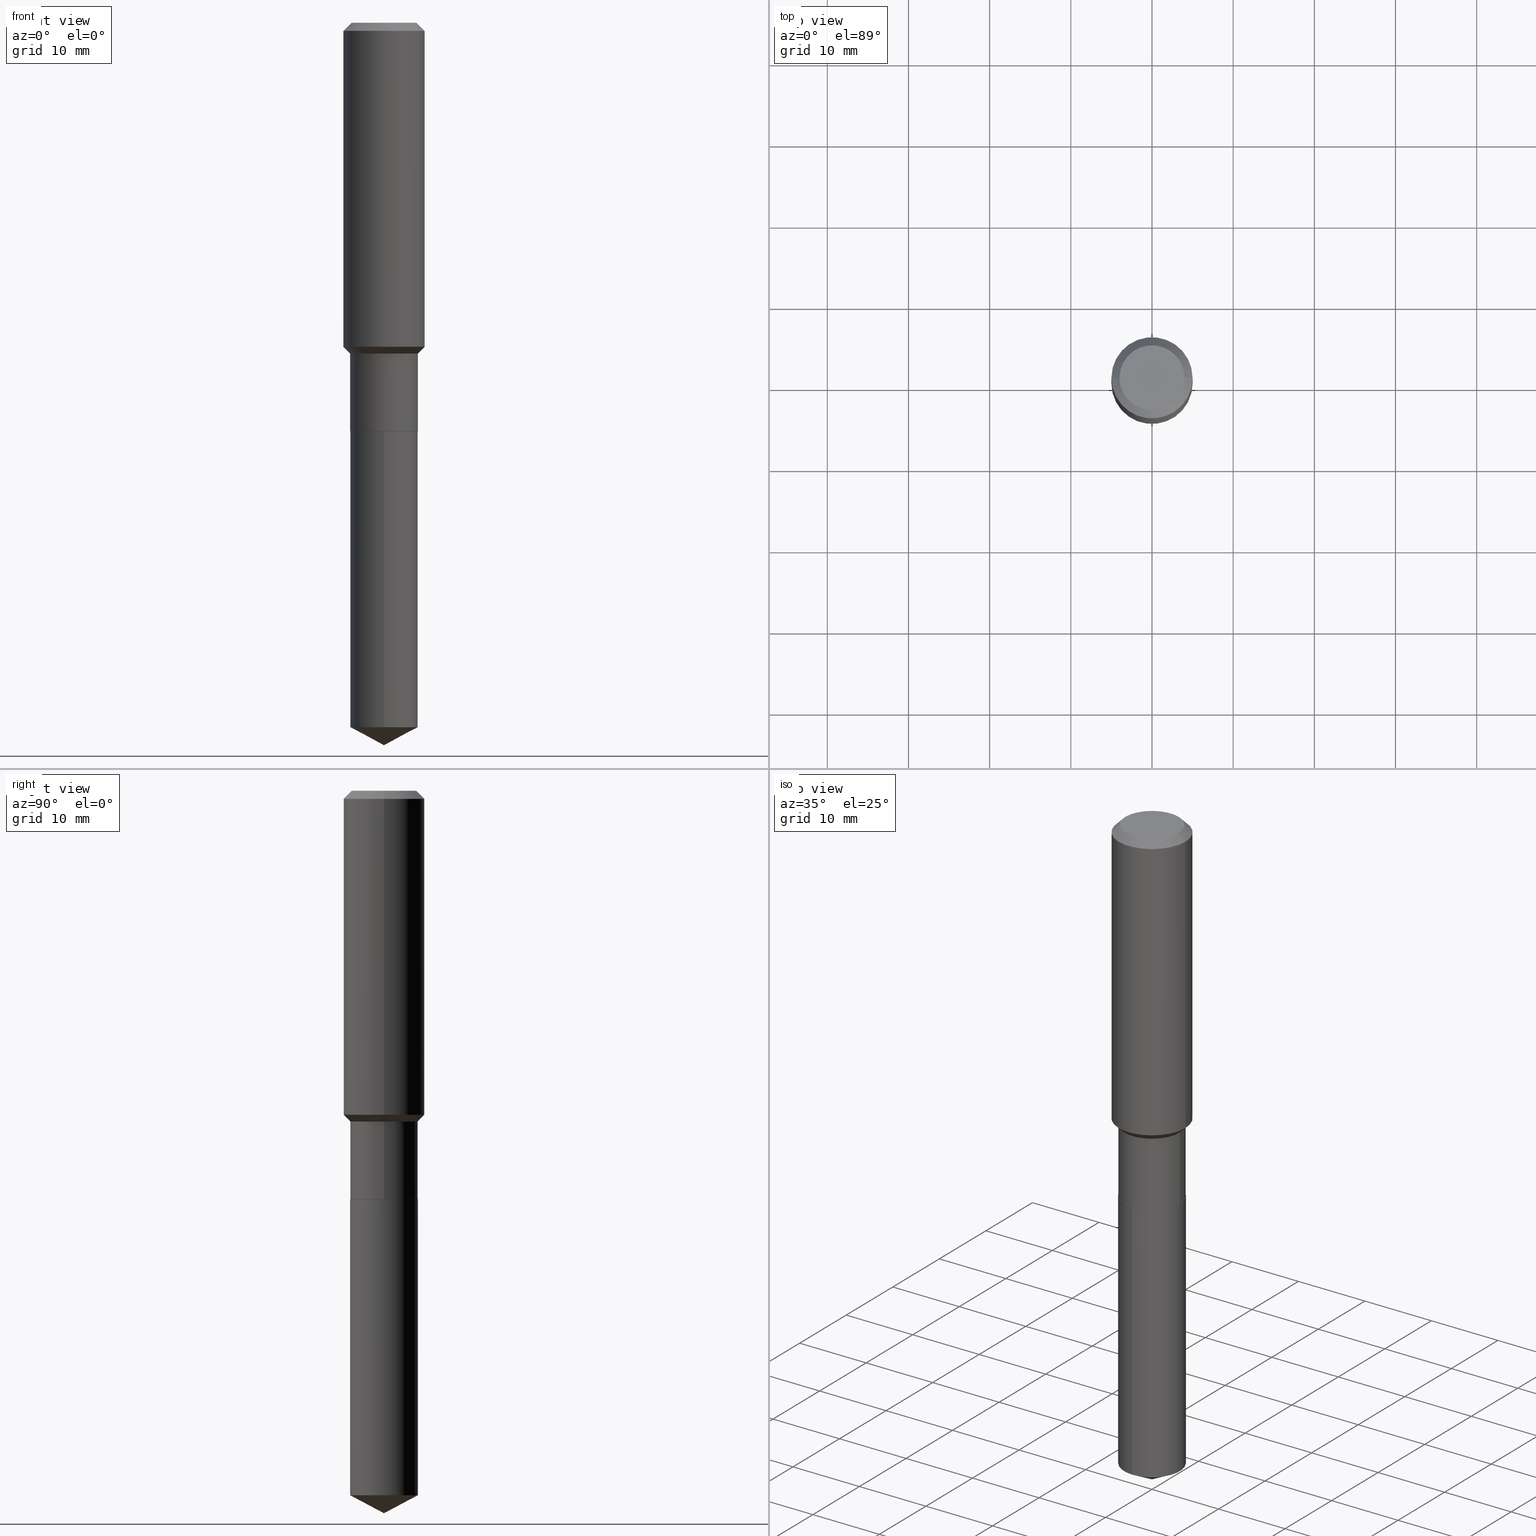
[diagram: canonical four-view strip — front | top / right | iso, engineering-drawing reading convention]
A machine part, canonical four-view strip (front | top / right | iso — engineering-drawing reading convention). The complete STEP part file that produces these views, byte-faithful:
ISO-10303-21;
HEADER;
FILE_DESCRIPTION (( 'STEP AP203' ),
    '1' );
FILE_NAME ('54716.STEP',
    '2024-04-24T15:30:50',
    ( '' ),
    ( '' ),
    'SwSTEP 2.0',
    'SolidWorks 2023',
    '' );
FILE_SCHEMA (( 'CONFIG_CONTROL_DESIGN' ));
ENDSEC;

DATA;
#1 = DIRECTION ( 'NONE',  ( -1.000000000000000000, 6.982962677686266711E-15, 0.000000000000000000 ) ) ;
#2 = ORIENTED_EDGE ( 'NONE', *, *, #274, .F. ) ;
#3 = DIRECTION ( 'NONE',  ( 0.7071067811866441621, -2.468850131083269169E-15, 0.7071067811864508723 ) ) ;
#4 = EDGE_LOOP ( 'NONE', ( #434, #384, #266, #228 ) ) ;
#5 = CARTESIAN_POINT ( 'NONE',  ( 4.845940986336466171E-29, -6.918719421051576678E-15, -1.981599999999999806 ) ) ;
#6 = DIRECTION ( 'NONE',  ( 0.7071067811865454633, -7.319954787623248157E-15, -0.7071067811865495711 ) ) ;
#7 = ORIENTED_EDGE ( 'NONE', *, *, #30, .T. ) ;
#8 = VECTOR ( 'NONE', #27, 39.37007874015748854 ) ;
#9 = APPROVAL_PERSON_ORGANIZATION ( #334, #154, #488 ) ;
#10 = ORIENTED_EDGE ( 'NONE', *, *, #449, .T. ) ;
#11 = PLANE ( 'NONE',  #288 ) ;
#12 = CARTESIAN_POINT ( 'NONE',  ( 4.845940986336466171E-29, -6.918719421051576678E-15, -1.981599999999999806 ) ) ;
#13 = EDGE_CURVE ( 'NONE', #245, #131, #324, .T. ) ;
#14 = ORIENTED_EDGE ( 'NONE', *, *, #222, .F. ) ;
#15 = CIRCLE ( 'NONE', #258, 0.1635500000000000009 ) ;
#16 = DIRECTION ( 'NONE',  ( -2.445468806185136597E-29, 3.491481338843145583E-15, 1.000000000000000000 ) ) ;
#17 = EDGE_LOOP ( 'NONE', ( #382, #316, #232, #348 ) ) ;
#18 =( LENGTH_UNIT ( ) NAMED_UNIT ( * ) SI_UNIT ( $, .METRE. ) );
#19 = ORIENTED_EDGE ( 'NONE', *, *, #312, .F. ) ;
#20 = APPLICATION_PROTOCOL_DEFINITION ( 'international standard', 'config_control_design', 1994, #477 ) ;
#21 = VERTEX_POINT ( 'NONE', #238 ) ;
#22 = AXIS2_PLACEMENT_3D ( 'NONE', #375, #369, #489 ) ;
#23 = AXIS2_PLACEMENT_3D ( 'NONE', #171, #394, #199 ) ;
#24 = DATE_AND_TIME ( #32, #166 ) ;
#25 = CARTESIAN_POINT ( 'NONE',  ( 0.000000000000000000, 0.000000000000000000, 0.000000000000000000 ) ) ;
#26 = DATE_AND_TIME ( #286, #264 ) ;
#27 = DIRECTION ( 'NONE',  ( -6.165590087286827352E-15, -0.8829475928589254341, 0.4694715627858938034 ) ) ;
#28 = PERSON_AND_ORGANIZATION ( #456, #204 ) ;
#29 = DIRECTION ( 'NONE',  ( -6.982962677686267499E-15, -1.000000000000000000, 3.541896320645578618E-15 ) ) ;
#30 = EDGE_CURVE ( 'NONE', #474, #352, #126, .T. ) ;
#31 = EDGE_CURVE ( 'NONE', #474, #121, #424, .T. ) ;
#32 = CALENDAR_DATE ( 2024, 24, 4 ) ;
#33 = VECTOR ( 'NONE', #265, 39.37007874015748143 ) ;
#34 = DIRECTION ( 'NONE',  ( 1.000000000000000000, -6.982962677686266711E-15, 4.876176775795935793E-29 ) ) ;
#35 = CARTESIAN_POINT ( 'NONE',  ( 3.923265605762814630E-29, -5.601383511906058021E-15, -1.604299999999999837 ) ) ;
#36 = DIRECTION ( 'NONE',  ( -2.445522446065452572E-29, 3.491404523481540446E-15, 1.000000000000000000 ) ) ;
#37 = CARTESIAN_POINT ( 'NONE',  ( -0.1968500000000000527, 1.237136582792286422E-15, -0.03937000000000027283 ) ) ;
#38 = CC_DESIGN_PERSON_AND_ORGANIZATION_ASSIGNMENT ( #28, #106, ( #157 ) ) ;
#39 = AXIS2_PLACEMENT_3D ( 'NONE', #279, #60, #272 ) ;
#40 = DIRECTION ( 'NONE',  ( -2.445522446065452572E-29, 3.491404523481540446E-15, 1.000000000000000000 ) ) ;
#41 = ORIENTED_EDGE ( 'NONE', *, *, #274, .T. ) ;
#42 = CARTESIAN_POINT ( 'NONE',  ( -8.771165145643749478E-28, 1.252231864760627282E-13, 35.86617874015747987 ) ) ;
#43 = EDGE_LOOP ( 'NONE', ( #161, #429, #236, #56 ) ) ;
#44 = ADVANCED_FACE ( 'NONE', ( #353 ), #11, .F. ) ;
#45 = DIRECTION ( 'NONE',  ( -0.7071067811865454633, 2.468850131082235367E-15, -0.7071067811865495711 ) ) ;
#46 = VECTOR ( 'NONE', #193, 39.37007874015748143 ) ;
#47 = ORIENTED_EDGE ( 'NONE', *, *, #413, .F. ) ;
#48 = CIRCLE ( 'NONE', #120, 0.1640500000000000014 ) ;
#49 = FACE_OUTER_BOUND ( 'NONE', #416, .T. ) ;
#50 = ORIENTED_EDGE ( 'NONE', *, *, #218, .T. ) ;
#51 = APPROVAL ( #481, 'UNSPECIFIED' ) ;
#52 = FACE_OUTER_BOUND ( 'NONE', #77, .T. ) ;
#53 = ADVANCED_FACE ( 'NONE', ( #335 ), #406, .T. ) ;
#54 = ORIENTED_EDGE ( 'NONE', *, *, #70, .F. ) ;
#55 = DIRECTION ( 'NONE',  ( 1.000000000000000000, -6.982962677686266711E-15, 0.000000000000000000 ) ) ;
#56 = ORIENTED_EDGE ( 'NONE', *, *, #205, .F. ) ;
#57 = LOCAL_TIME ( 11, 30, 50.00000000000000000, #483 ) ;
#58 = DIRECTION ( 'NONE',  ( -2.445468806185136597E-29, 3.491481338843145583E-15, 1.000000000000000000 ) ) ;
#59 = ORIENTED_EDGE ( 'NONE', *, *, #256, .F. ) ;
#60 = DIRECTION ( 'NONE',  ( -2.445468806185136597E-29, 3.491481338843145583E-15, 1.000000000000000000 ) ) ;
#61 = ORIENTED_EDGE ( 'NONE', *, *, #368, .T. ) ;
#62 =( NAMED_UNIT ( * ) SI_UNIT ( $, .STERADIAN. ) SOLID_ANGLE_UNIT ( ) );
#63 = DIRECTION ( 'NONE',  ( -0.7071067811865472397, 7.493145998870354160E-15, 0.7071067811865477948 ) ) ;
#64 = APPROVAL_PERSON_ORGANIZATION ( #327, #51, #137 ) ;
#65 = APPROVAL_DATE_TIME ( #447, #154 ) ;
#66 = DIRECTION ( 'NONE',  ( 1.000000000000000000, -6.982962677686266711E-15, 0.000000000000000000 ) ) ;
#67 = DESIGN_CONTEXT ( 'detailed design', #440, 'design' ) ;
#68 = PERSON_AND_ORGANIZATION ( #456, #204 ) ;
#69 = DIRECTION ( 'NONE',  ( -2.445468806185136597E-29, 3.491481338843145583E-15, 1.000000000000000000 ) ) ;
#70 = EDGE_CURVE ( 'NONE', #469, #466, #399, .T. ) ;
#71 = FACE_OUTER_BOUND ( 'NONE', #230, .T. ) ;
#72 = AXIS2_PLACEMENT_3D ( 'NONE', #78, #379, #188 ) ;
#73 = PERSON_AND_ORGANIZATION ( #456, #204 ) ;
#74 = AXIS2_PLACEMENT_3D ( 'NONE', #111, #339, #1 ) ;
#75 = DIRECTION ( 'NONE',  ( 2.445522446065452572E-29, -3.491404523481540446E-15, -1.000000000000000000 ) ) ;
#76 = DIRECTION ( 'NONE',  ( -2.445522446065452572E-29, 3.491404523481540446E-15, 1.000000000000000000 ) ) ;
#77 = EDGE_LOOP ( 'NONE', ( #7, #427, #19, #96 ) ) ;
#78 = CARTESIAN_POINT ( 'NONE',  ( -9.427742298522567634E-47, 1.346031739168368355E-32, 3.855188123715870730E-18 ) ) ;
#79 = VERTEX_POINT ( 'NONE', #287 ) ;
#80 = AXIS2_PLACEMENT_3D ( 'NONE', #180, #143, #29 ) ;
#81 = DIRECTION ( 'NONE',  ( 1.000000000000000000, -6.982962677686266711E-15, 0.000000000000000000 ) ) ;
#82 = AXIS2_PLACEMENT_3D ( 'NONE', #306, #152, #147 ) ;
#83 = EDGE_CURVE ( 'NONE', #469, #362, #331, .T. ) ;
#84 = CARTESIAN_POINT ( 'NONE',  ( 4.845940986336466171E-29, -6.918719421051576678E-15, -1.981599999999999806 ) ) ;
#85 = EDGE_CURVE ( 'NONE', #129, #474, #105, .T. ) ;
#86 = DIRECTION ( 'NONE',  ( -6.982962677686265133E-15, -1.000000000000000000, 3.330506545156066257E-15 ) ) ;
#87 = ORIENTED_EDGE ( 'NONE', *, *, #470, .T. ) ;
#88 = CC_DESIGN_DATE_AND_TIME_ASSIGNMENT ( #26, #179, ( #139 ) ) ;
#89 = LENGTH_MEASURE_WITH_UNIT ( LENGTH_MEASURE( 0.02539999999999999897 ), #18 );
#90 = AXIS2_PLACEMENT_3D ( 'NONE', #187, #69, #486 ) ;
#91 = DIRECTION ( 'NONE',  ( -2.445522446065452853E-29, 3.491404523481540446E-15, 1.000000000000000000 ) ) ;
#92 = AXIS2_PLACEMENT_3D ( 'NONE', #465, #277, #431 ) ;
#93 = CC_DESIGN_PERSON_AND_ORGANIZATION_ASSIGNMENT ( #175, #371, ( #374 ) ) ;
#94 = ORIENTED_EDGE ( 'NONE', *, *, #346, .F. ) ;
#95 = EDGE_LOOP ( 'NONE', ( #14, #61, #50, #2 ) ) ;
#96 = ORIENTED_EDGE ( 'NONE', *, *, #31, .F. ) ;
#97 = DIRECTION ( 'NONE',  ( -2.445468806185136877E-29, 3.491481338843145188E-15, 1.000000000000000000 ) ) ;
#98 = PERSON_AND_ORGANIZATION ( #456, #204 ) ;
#99 = DIRECTION ( 'NONE',  ( -2.445468806185136597E-29, 3.491481338843145583E-15, 1.000000000000000000 ) ) ;
#100 = DIRECTION ( 'NONE',  ( -2.445468806185136597E-29, 3.491481338843145583E-15, 1.000000000000000000 ) ) ;
#101 = AXIS2_PLACEMENT_3D ( 'NONE', #140, #446, #176 ) ;
#102 = ADVANCED_FACE ( 'NONE', ( #71 ), #250, .F. ) ;
#103 = ADVANCED_FACE ( 'NONE', ( #328 ), #402, .F. ) ;
#104 = PERSON_AND_ORGANIZATION ( #456, #204 ) ;
#105 = LINE ( 'NONE', #214, #8 ) ;
#106 = PERSON_AND_ORGANIZATION_ROLE ( 'design_supplier' ) ;
#107 = CARTESIAN_POINT ( 'NONE',  ( 4.845940986336466171E-29, -6.918719421051576678E-15, -1.981599999999999806 ) ) ;
#108 = SECURITY_CLASSIFICATION_LEVEL ( 'unclassified' ) ;
#109 = CARTESIAN_POINT ( 'NONE',  ( 3.923265605762814630E-29, -5.601383511906058021E-15, -1.604299999999999837 ) ) ;
#110 = CIRCLE ( 'NONE', #128, 0.1968500000000001915 ) ;
#111 = CARTESIAN_POINT ( 'NONE',  ( 9.627810689950950651E-31, -1.374596203102555808E-16, -0.03937000000000027283 ) ) ;
#112 = CC_DESIGN_DATE_AND_TIME_ASSIGNMENT ( #283, #438, ( #476 ) ) ;
#113 = LINE ( 'NONE', #410, #349 ) ;
#114 = DIRECTION ( 'NONE',  ( -2.445468806185136597E-29, 3.491481338843145583E-15, 1.000000000000000000 ) ) ;
#115 = ORIENTED_EDGE ( 'NONE', *, *, #432, .F. ) ;
#116 = ADVANCED_FACE ( 'NONE', ( #441 ), #475, .T. ) ;
#117 = ADVANCED_FACE ( 'NONE', ( #293 ), #217, .T. ) ;
#118 = AXIS2_PLACEMENT_3D ( 'NONE', #107, #404, #211 ) ;
#119 = CARTESIAN_POINT ( 'NONE',  ( 0.1968500000000001915, -6.861459127094544262E-15, -1.571499999999999675 ) ) ;
#120 = AXIS2_PLACEMENT_3D ( 'NONE', #190, #40, #344 ) ;
#121 = VERTEX_POINT ( 'NONE', #396 ) ;
#122 = DIRECTION ( 'NONE',  ( 0.7071067811865472397, -2.468850131082253905E-15, 0.7071067811865477948 ) ) ;
#123 = ORIENTED_EDGE ( 'NONE', *, *, #13, .F. ) ;
#124 = CARTESIAN_POINT ( 'NONE',  ( 9.627810689950950651E-31, -1.374596203102555808E-16, -0.03937000000000027283 ) ) ;
#125 = EDGE_LOOP ( 'NONE', ( #354, #165, #241, #54 ) ) ;
#126 = CIRCLE ( 'NONE', #450, 0.1640500000000000014 ) ;
#127 = ORIENTED_EDGE ( 'NONE', *, *, #310, .F. ) ;
#128 = AXIS2_PLACEMENT_3D ( 'NONE', #156, #461, #237 ) ;
#129 = VERTEX_POINT ( 'NONE', #482 ) ;
#130 = CARTESIAN_POINT ( 'NONE',  ( 0.1640499999999999459, -6.746938539180489683E-15, -1.604299999999999837 ) ) ;
#131 = VERTEX_POINT ( 'NONE', #252 ) ;
#132 = CARTESIAN_POINT ( 'NONE',  ( -1.145555027274348438E-15, -0.1640500000000119085, -3.416673067735933600 ) ) ;
#133 = VERTEX_POINT ( 'NONE', #285 ) ;
#134 = CIRCLE ( 'NONE', #195, 0.1574800000000000089 ) ;
#135 = CALENDAR_DATE ( 2024, 24, 4 ) ;
#136 = DIRECTION ( 'NONE',  ( -6.982962677686265133E-15, -1.000000000000000000, 3.330506545156066257E-15 ) ) ;
#137 = APPROVAL_ROLE ( '' ) ;
#138 = DIRECTION ( 'NONE',  ( 1.000000000000000000, -6.982962677686266711E-15, 4.876176775795935232E-29 ) ) ;
#139 = PRODUCT_DEFINITION ( 'UNKNOWN', '', #157, #67 ) ;
#140 = CARTESIAN_POINT ( 'NONE',  ( 3.923265605762814630E-29, -5.601383511906058021E-15, -1.604299999999999837 ) ) ;
#141 = AXIS2_PLACEMENT_3D ( 'NONE', #247, #75, #338 ) ;
#142 = AXIS2_PLACEMENT_3D ( 'NONE', #419, #196, #81 ) ;
#143 = DIRECTION ( 'NONE',  ( -2.445522446065452572E-29, 3.491404523481540446E-15, 1.000000000000000000 ) ) ;
#144 = DIRECTION ( 'NONE',  ( 1.000000000000000000, 0.000000000000000000, 0.000000000000000000 ) ) ;
#145 = CYLINDRICAL_SURFACE ( 'NONE', #302, 0.1640500000000000014 ) ;
#146 = APPROVAL_DATE_TIME ( #259, #297 ) ;
#147 = DIRECTION ( 'NONE',  ( 1.000000000000000000, -6.982962677686266711E-15, 4.876176775795935793E-29 ) ) ;
#148 = LINE ( 'NONE', #347, #289 ) ;
#149 = ORIENTED_EDGE ( 'NONE', *, *, #254, .F. ) ;
#150 = CARTESIAN_POINT ( 'NONE',  ( -0.1635500000000000009, -5.753977549541821814E-15, -1.981599999999999806 ) ) ;
#151 = ADVANCED_FACE ( 'NONE', ( #484 ), #225, .T. ) ;
#152 = DIRECTION ( 'NONE',  ( -2.445468806185136597E-29, 3.491481338843145583E-15, 1.000000000000000000 ) ) ;
#153 = VERTEX_POINT ( 'NONE', #444 ) ;
#154 = APPROVAL ( #251, 'UNSPECIFIED' ) ;
#155 = CIRCLE ( 'NONE', #280, 0.1968500000000000527 ) ;
#156 = CARTESIAN_POINT ( 'NONE',  ( 3.843054228919941314E-29, -5.486862923992002653E-15, -1.571499999999999675 ) ) ;
#157 = PRODUCT_DEFINITION_FORMATION_WITH_SPECIFIED_SOURCE ( 'ANY', '', #374, .NOT_KNOWN. ) ;
#158 = CC_DESIGN_APPROVAL ( #297, ( #476 ) ) ;
#159 = ORIENTED_EDGE ( 'NONE', *, *, #414, .F. ) ;
#160 = DIRECTION ( 'NONE',  ( -2.445522446065452572E-29, 3.491404523481540446E-15, 1.000000000000000000 ) ) ;
#161 = ORIENTED_EDGE ( 'NONE', *, *, #414, .T. ) ;
#162 = ORIENTED_EDGE ( 'NONE', *, *, #85, .T. ) ;
#163 = CARTESIAN_POINT ( 'NONE',  ( 4.844718251933373369E-29, -6.916973680382155175E-15, -1.981099999999999861 ) ) ;
#164 = AXIS2_PLACEMENT_3D ( 'NONE', #35, #490, #66 ) ;
#165 = ORIENTED_EDGE ( 'NONE', *, *, #397, .T. ) ;
#166 = LOCAL_TIME ( 11, 30, 50.00000000000000000, #478 ) ;
#167 = FACE_OUTER_BOUND ( 'NONE', #200, .T. ) ;
#168 = ORIENTED_EDGE ( 'NONE', *, *, #312, .T. ) ;
#169 = EDGE_CURVE ( 'NONE', #321, #153, #372, .T. ) ;
#170 = ADVANCED_FACE ( 'NONE', ( #257 ), #291, .T. ) ;
#171 = CARTESIAN_POINT ( 'NONE',  ( 3.923265605762814630E-29, -5.601383511906058021E-15, -1.604299999999999837 ) ) ;
#172 = ORIENTED_EDGE ( 'NONE', *, *, #222, .T. ) ;
#173 = ORIENTED_EDGE ( 'NONE', *, *, #13, .T. ) ;
#174 = AXIS2_PLACEMENT_3D ( 'NONE', #42, #76, #220 ) ;
#175 = PERSON_AND_ORGANIZATION ( #456, #204 ) ;
#176 = DIRECTION ( 'NONE',  ( 1.000000000000000000, -6.982962677686266711E-15, 0.000000000000000000 ) ) ;
#177 = MECHANICAL_CONTEXT ( 'NONE', #477, 'mechanical' ) ;
#178 = DIRECTION ( 'NONE',  ( 2.438088387897960049E-29, -3.491481338843145188E-15, -1.000000000000000000 ) ) ;
#179 = DATE_TIME_ROLE ( 'creation_date' ) ;
#180 = CARTESIAN_POINT ( 'NONE',  ( -8.771165145643749478E-28, 1.252231864760627282E-13, 35.86617874015747987 ) ) ;
#181 = CLOSED_SHELL ( 'NONE', ( #455, #223, #330, #53, #117, #191, #116, #189, #471, #44, #103, #487 ) ) ;
#182 = AXIS2_PLACEMENT_3D ( 'NONE', #12, #160, #206 ) ;
#183 = LOCAL_TIME ( 11, 30, 50.00000000000000000, #363 ) ;
#184 = DIRECTION ( 'NONE',  ( 0.000000000000000000, 0.000000000000000000, 1.000000000000000000 ) ) ;
#185 = FACE_OUTER_BOUND ( 'NONE', #125, .T. ) ;
#186 = CALENDAR_DATE ( 2024, 24, 4 ) ;
#187 = CARTESIAN_POINT ( 'NONE',  ( 0.000000000000000000, 0.000000000000000000, 0.000000000000000000 ) ) ;
#188 = DIRECTION ( 'NONE',  ( 1.000000000000000000, -6.982962677686265922E-15, 4.876223630392693006E-29 ) ) ;
#189 = ADVANCED_FACE ( 'NONE', ( #326 ), #439, .T. ) ;
#190 = CARTESIAN_POINT ( 'NONE',  ( 8.355444385228701758E-29, -1.192914002127134836E-14, -3.416673067735934044 ) ) ;
#191 = ADVANCED_FACE ( 'NONE', ( #185 ), #145, .T. ) ;
#192 = FACE_OUTER_BOUND ( 'NONE', #281, .T. ) ;
#193 = DIRECTION ( 'NONE',  ( -2.445468806185136877E-29, 3.491481338843145188E-15, 1.000000000000000000 ) ) ;
#194 = ORIENTED_EDGE ( 'NONE', *, *, #398, .T. ) ;
#195 = AXIS2_PLACEMENT_3D ( 'NONE', #386, #58, #201 ) ;
#196 = DIRECTION ( 'NONE',  ( -2.445468806185136597E-29, 3.491481338843145583E-15, 1.000000000000000000 ) ) ;
#197 = VECTOR ( 'NONE', #426, 39.37007874015748143 ) ;
#198 = ORIENTED_EDGE ( 'NONE', *, *, #169, .T. ) ;
#199 = DIRECTION ( 'NONE',  ( 1.000000000000000000, -6.982962677686266711E-15, 0.000000000000000000 ) ) ;
#200 = EDGE_LOOP ( 'NONE', ( #307, #198, #115, #127 ) ) ;
#201 = DIRECTION ( 'NONE',  ( 1.000000000000000000, -6.982962677686265922E-15, 4.876223630392693006E-29 ) ) ;
#202 = EDGE_CURVE ( 'NONE', #79, #466, #365, .T. ) ;
#203 = ORIENTED_EDGE ( 'NONE', *, *, #31, .T. ) ;
#204 = ORGANIZATION ( 'UNSPECIFIED', 'UNSPECIFIED', '' ) ;
#205 = EDGE_CURVE ( 'NONE', #466, #245, #296, .T. ) ;
#206 = DIRECTION ( 'NONE',  ( -6.982962677686265133E-15, -1.000000000000000000, 3.330506545156066257E-15 ) ) ;
#207 = ORIENTED_EDGE ( 'NONE', *, *, #346, .T. ) ;
#208 = LINE ( 'NONE', #462, #197 ) ;
#209 = CARTESIAN_POINT ( 'NONE',  ( 0.1968500000000001082, -1.374596203102542397E-15, 9.598753983154305062E-30 ) ) ;
#210 = APPROVAL_ROLE ( '' ) ;
#211 = DIRECTION ( 'NONE',  ( -6.982962677686265133E-15, -1.000000000000000000, 3.330506545156066257E-15 ) ) ;
#212 = AXIS2_PLACEMENT_3D ( 'NONE', #235, #16, #55 ) ;
#213 = PERSON_AND_ORGANIZATION_ROLE ( 'creator' ) ;
#214 = CARTESIAN_POINT ( 'NONE',  ( 8.568653513195071669E-29, -1.223383674446808195E-14, -3.503899999999999793 ) ) ;
#215 =( CONVERSION_BASED_UNIT ( 'INCH', #89 ) LENGTH_UNIT ( ) NAMED_UNIT ( #433 ) );
#216 = DIRECTION ( 'NONE',  ( -2.445468806185136597E-29, 3.491481338843145583E-15, 1.000000000000000000 ) ) ;
#217 = CYLINDRICAL_SURFACE ( 'NONE', #90, 0.1640500000000000014 ) ;
#218 = EDGE_CURVE ( 'NONE', #131, #133, #155, .T. ) ;
#219 = CARTESIAN_POINT ( 'NONE',  ( -4.713871149261283817E-47, 6.730158695841841775E-33, 1.927594061857935365E-18 ) ) ;
#220 = DIRECTION ( 'NONE',  ( -6.982962677686267499E-15, -1.000000000000000000, 3.541896320645578618E-15 ) ) ;
#221 = VERTEX_POINT ( 'NONE', #453 ) ;
#222 = EDGE_CURVE ( 'NONE', #390, #221, #435, .T. ) ;
#223 = ADVANCED_FACE ( 'NONE', ( #378 ), #322, .T. ) ;
#224 = CARTESIAN_POINT ( 'NONE',  ( 9.627810689950950651E-31, -1.374596203102555808E-16, -0.03937000000000027283 ) ) ;
#225 = CONICAL_SURFACE ( 'NONE', #80, 74.04434902938317009, 1.082104136236484493 ) ;
#226 = CIRCLE ( 'NONE', #443, 0.1640500000000000014 ) ;
#227 = DIRECTION ( 'NONE',  ( -2.445468806185136597E-29, 3.491481338843145583E-15, 1.000000000000000000 ) ) ;
#228 = ORIENTED_EDGE ( 'NONE', *, *, #304, .F. ) ;
#229 = CARTESIAN_POINT ( 'NONE',  ( 1.165645358014527787E-15, 0.1640499999999880942, -3.416673067735934932 ) ) ;
#230 = EDGE_LOOP ( 'NONE', ( #168, #207 ) ) ;
#231 = DIRECTION ( 'NONE',  ( 6.273719981627758188E-15, 0.8829475928589286537, 0.4694715627858875306 ) ) ;
#232 = ORIENTED_EDGE ( 'NONE', *, *, #310, .T. ) ;
#233 = VECTOR ( 'NONE', #91, 39.37007874015748143 ) ;
#234 = CIRCLE ( 'NONE', #212, 0.1968500000000000527 ) ;
#235 = CARTESIAN_POINT ( 'NONE',  ( 9.627810689950950651E-31, -1.374596203102555808E-16, -0.03937000000000027283 ) ) ;
#236 = ORIENTED_EDGE ( 'NONE', *, *, #380, .F. ) ;
#237 = DIRECTION ( 'NONE',  ( 1.000000000000000000, -6.982962677686266711E-15, 0.000000000000000000 ) ) ;
#238 = CARTESIAN_POINT ( 'NONE',  ( 0.1635500000000000009, -8.060782966987165334E-15, -1.981599999999999806 ) ) ;
#239 = CARTESIAN_POINT ( 'NONE',  ( 0.1574800000000000089, -1.284169937930321386E-15, 3.855188123724205385E-18 ) ) ;
#240 = EDGE_CURVE ( 'NONE', #129, #352, #113, .T. ) ;
#241 = ORIENTED_EDGE ( 'NONE', *, *, #202, .T. ) ;
#242 = UNCERTAINTY_MEASURE_WITH_UNIT (LENGTH_MEASURE( 1.000000000000000082E-05 ), #215, 'distance_accuracy_value', 'NONE');
#243 = ORIENTED_EDGE ( 'NONE', *, *, #368, .F. ) ;
#244 = CARTESIAN_POINT ( 'NONE',  ( 4.844718251933373369E-29, -6.916973680382155175E-15, -1.981099999999999861 ) ) ;
#245 = VERTEX_POINT ( 'NONE', #119 ) ;
#246 = APPROVAL_STATUS ( 'not_yet_approved' ) ;
#247 = CARTESIAN_POINT ( 'NONE',  ( 4.845940986336466171E-29, -6.918719421051576678E-15, -1.981599999999999806 ) ) ;
#248 = PRODUCT_DEFINITION_SHAPE ( 'NONE', 'NONE',  #139 ) ;
#249 = CALENDAR_DATE ( 2024, 24, 4 ) ;
#250 = PLANE ( 'NONE',  #141 ) ;
#251 = APPROVAL_STATUS ( 'not_yet_approved' ) ;
#252 = CARTESIAN_POINT ( 'NONE',  ( 0.1968500000000000527, -1.512055823412797583E-15, -0.03937000000000027283 ) ) ;
#253 =( NAMED_UNIT ( * ) PLANE_ANGLE_UNIT ( ) SI_UNIT ( $, .RADIAN. ) );
#254 = EDGE_CURVE ( 'NONE', #352, #420, #267, .T. ) ;
#255 = DIRECTION ( 'NONE',  ( 1.000000000000000000, -6.982962677686266711E-15, 0.000000000000000000 ) ) ;
#256 = EDGE_CURVE ( 'NONE', #321, #21, #15, .T. ) ;
#257 = FACE_OUTER_BOUND ( 'NONE', #358, .T. ) ;
#258 = AXIS2_PLACEMENT_3D ( 'NONE', #261, #227, #411 ) ;
#259 = DATE_AND_TIME ( #186, #183 ) ;
#260 = DIRECTION ( 'NONE',  ( -2.445468806185136597E-29, 3.491481338843145583E-15, 1.000000000000000000 ) ) ;
#261 = CARTESIAN_POINT ( 'NONE',  ( 4.845940986336466171E-29, -6.918719421051576678E-15, -1.981599999999999806 ) ) ;
#262 = ORIENTED_EDGE ( 'NONE', *, *, #380, .T. ) ;
#263 = DIRECTION ( 'NONE',  ( 1.000000000000000000, -6.982962677686265922E-15, 0.000000000000000000 ) ) ;
#264 = LOCAL_TIME ( 11, 30, 50.00000000000000000, #292 ) ;
#265 = DIRECTION ( 'NONE',  ( -2.445522446065452853E-29, 3.491404523481540446E-15, 1.000000000000000000 ) ) ;
#266 = ORIENTED_EDGE ( 'NONE', *, *, #205, .T. ) ;
#267 = LINE ( 'NONE', #300, #33 ) ;
#268 = ORIENTED_EDGE ( 'NONE', *, *, #202, .F. ) ;
#269 = EDGE_LOOP ( 'NONE', ( #273, #59 ) ) ;
#270 = CLOSED_SHELL ( 'NONE', ( #430, #151, #345, #170, #102 ) ) ;
#271 = AXIS2_PLACEMENT_3D ( 'NONE', #163, #315, #468 ) ;
#272 = DIRECTION ( 'NONE',  ( 1.000000000000000000, -6.982962677686265922E-15, 0.000000000000000000 ) ) ;
#273 = ORIENTED_EDGE ( 'NONE', *, *, #329, .F. ) ;
#274 = EDGE_CURVE ( 'NONE', #221, #133, #415, .T. ) ;
#275 = FACE_OUTER_BOUND ( 'NONE', #17, .T. ) ;
#276 = ORIENTED_EDGE ( 'NONE', *, *, #449, .F. ) ;
#277 = DIRECTION ( 'NONE',  ( -2.445468806185136597E-29, 3.491481338843145583E-15, 1.000000000000000000 ) ) ;
#278 = ORIENTED_EDGE ( 'NONE', *, *, #30, .F. ) ;
#279 = CARTESIAN_POINT ( 'NONE',  ( 4.845940986336466171E-29, -6.918719421051576678E-15, -1.981599999999999806 ) ) ;
#280 = AXIS2_PLACEMENT_3D ( 'NONE', #224, #260, #451 ) ;
#281 = EDGE_LOOP ( 'NONE', ( #262, #10, #343, #123 ) ) ;
#282 = AXIS2_PLACEMENT_3D ( 'NONE', #244, #428, #318 ) ;
#283 = DATE_AND_TIME ( #135, #479 ) ;
#284 = DIRECTION ( 'NONE',  ( -0.7071067811866441621, 7.493145998870704414E-15, 0.7071067811864508723 ) ) ;
#285 = CARTESIAN_POINT ( 'NONE',  ( -0.1968500000000000527, -1.413457896807370738E-15, -0.03937000000000027283 ) ) ;
#286 = CALENDAR_DATE ( 2024, 24, 4 ) ;
#287 = CARTESIAN_POINT ( 'NONE',  ( 0.1640500000000000291, -8.062528707656587626E-15, -1.981099999999999861 ) ) ;
#288 = AXIS2_PLACEMENT_3D ( 'NONE', #219, #178, #367 ) ;
#289 = VECTOR ( 'NONE', #6, 39.37007874015748143 ) ;
#290 = EDGE_CURVE ( 'NONE', #352, #474, #48, .T. ) ;
#291 = CYLINDRICAL_SURFACE ( 'NONE', #118, 0.1640500000000000014 ) ;
#292 = COORDINATED_UNIVERSAL_TIME_OFFSET ( 5, 0, .BEHIND. ) ;
#293 = FACE_OUTER_BOUND ( 'NONE', #437, .T. ) ;
#294 = CARTESIAN_POINT ( 'NONE',  ( 0.1640500000000000014, -1.145555027274432057E-15, 7.999368000693231542E-30 ) ) ;
#295 = CONICAL_SURFACE ( 'NONE', #39, 0.1635500000000000009, 0.7853981633975849475 ) ;
#296 = LINE ( 'NONE', #383, #459 ) ;
#297 = APPROVAL ( #246, 'UNSPECIFIED' ) ;
#298 = CARTESIAN_POINT ( 'NONE',  ( 4.845940986336466171E-29, -6.918719421051576678E-15, -1.981599999999999806 ) ) ;
#299 = ORIENTED_EDGE ( 'NONE', *, *, #398, .F. ) ;
#300 = CARTESIAN_POINT ( 'NONE',  ( 1.165645358014492485E-15, 0.1640499999999930625, -1.981600000000000250 ) ) ;
#301 = EDGE_LOOP ( 'NONE', ( #360, #162, #464 ) ) ;
#302 = AXIS2_PLACEMENT_3D ( 'NONE', #407, #99, #138 ) ;
#303 = CIRCLE ( 'NONE', #142, 0.1968500000000001915 ) ;
#304 = EDGE_CURVE ( 'NONE', #362, #245, #303, .T. ) ;
#305 = APPROVAL_PERSON_ORGANIZATION ( #98, #297, #210 ) ;
#306 = CARTESIAN_POINT ( 'NONE',  ( 0.000000000000000000, 0.000000000000000000, 0.000000000000000000 ) ) ;
#307 = ORIENTED_EDGE ( 'NONE', *, *, #329, .T. ) ;
#308 = ORIENTED_EDGE ( 'NONE', *, *, #85, .F. ) ;
#309 = DIRECTION ( 'NONE',  ( -1.000000000000000000, 6.982962677686266711E-15, 0.000000000000000000 ) ) ;
#310 = EDGE_CURVE ( 'NONE', #21, #79, #457, .T. ) ;
#311 = EDGE_LOOP ( 'NONE', ( #194, #172 ) ) ;
#312 = EDGE_CURVE ( 'NONE', #121, #420, #226, .T. ) ;
#313 = AXIS2_PLACEMENT_3D ( 'NONE', #109, #100, #255 ) ;
#314 = AXIS2_PLACEMENT_3D ( 'NONE', #5, #114, #263 ) ;
#315 = DIRECTION ( 'NONE',  ( -2.445468806185136597E-29, 3.491481338843145583E-15, 1.000000000000000000 ) ) ;
#316 = ORIENTED_EDGE ( 'NONE', *, *, #256, .T. ) ;
#317 = ADVANCED_BREP_SHAPE_REPRESENTATION ( '54716', ( #336, #342, #418 ), #408 ) ;
#318 = DIRECTION ( 'NONE',  ( 1.000000000000000000, -6.982962677686269077E-15, 0.000000000000000000 ) ) ;
#319 = ORIENTED_EDGE ( 'NONE', *, *, #432, .T. ) ;
#320 = DIRECTION ( 'NONE',  ( 2.445468806185136597E-29, -3.491481338843145583E-15, -1.000000000000000000 ) ) ;
#321 = VERTEX_POINT ( 'NONE', #150 ) ;
#322 = CONICAL_SURFACE ( 'NONE', #74, 0.1968500000000000527, 0.7853981633974453924 ) ;
#323 = CIRCLE ( 'NONE', #314, 0.1635500000000000009 ) ;
#324 = LINE ( 'NONE', #209, #373 ) ;
#325 = PERSON_AND_ORGANIZATION_ROLE ( 'classification_officer' ) ;
#326 = FACE_OUTER_BOUND ( 'NONE', #387, .T. ) ;
#327 = PERSON_AND_ORGANIZATION ( #456, #204 ) ;
#328 = FACE_OUTER_BOUND ( 'NONE', #269, .T. ) ;
#329 = EDGE_CURVE ( 'NONE', #21, #321, #323, .T. ) ;
#330 = ADVANCED_FACE ( 'NONE', ( #192 ), #421, .T. ) ;
#331 = LINE ( 'NONE', #448, #355 ) ;
#332 = CC_DESIGN_APPROVAL ( #154, ( #157 ) ) ;
#333 = CC_DESIGN_SECURITY_CLASSIFICATION ( #476, ( #157 ) ) ;
#334 = PERSON_AND_ORGANIZATION ( #456, #204 ) ;
#335 = FACE_OUTER_BOUND ( 'NONE', #43, .T. ) ;
#336 = MANIFOLD_SOLID_BREP ( 'Body-Move/Copy2[1]', #270 ) ;
#337 = SHAPE_DEFINITION_REPRESENTATION ( #248, #317 ) ;
#338 = DIRECTION ( 'NONE',  ( 6.982962677686265922E-15, 1.000000000000000000, -3.491404523481540446E-15 ) ) ;
#339 = DIRECTION ( 'NONE',  ( 2.445468806185136597E-29, -3.491481338843145583E-15, -1.000000000000000000 ) ) ;
#340 = AXIS2_PLACEMENT_3D ( 'NONE', #84, #36, #86 ) ;
#341 = CARTESIAN_POINT ( 'NONE',  ( 0.1635500000000000009, -8.060782966987165334E-15, -1.981599999999999806 ) ) ;
#342 = MANIFOLD_SOLID_BREP ( 'Body-Move/Copy2[2]', #181 ) ;
#343 = ORIENTED_EDGE ( 'NONE', *, *, #218, .F. ) ;
#344 = DIRECTION ( 'NONE',  ( -6.982962677686265133E-15, -1.000000000000000000, 3.330506545156066257E-15 ) ) ;
#345 = ADVANCED_FACE ( 'NONE', ( #458 ), #385, .T. ) ;
#346 = EDGE_CURVE ( 'NONE', #420, #121, #436, .T. ) ;
#347 = CARTESIAN_POINT ( 'NONE',  ( 0.1968500000000000527, -1.487948651171581996E-15, -0.03937000000000027283 ) ) ;
#348 = ORIENTED_EDGE ( 'NONE', *, *, #397, .F. ) ;
#349 = VECTOR ( 'NONE', #231, 39.37007874015748143 ) ;
#350 = VECTOR ( 'NONE', #3, 39.37007874015748143 ) ;
#351 = DIRECTION ( 'NONE',  ( -2.445522446065452572E-29, 3.491404523481540446E-15, 1.000000000000000000 ) ) ;
#352 = VERTEX_POINT ( 'NONE', #229 ) ;
#353 = FACE_OUTER_BOUND ( 'NONE', #311, .T. ) ;
#354 = ORIENTED_EDGE ( 'NONE', *, *, #470, .F. ) ;
#355 = VECTOR ( 'NONE', #63, 39.37007874015748143 ) ;
#356 = CONICAL_SURFACE ( 'NONE', #92, 0.1635500000000000009, 0.7853981633975849475 ) ;
#357 = DIRECTION ( 'NONE',  ( -2.445468806185136877E-29, 3.491481338843145188E-15, 1.000000000000000000 ) ) ;
#358 = EDGE_LOOP ( 'NONE', ( #149, #422, #203, #94 ) ) ;
#359 = CARTESIAN_POINT ( 'NONE',  ( -0.1640499999999999459, -5.093533238129662036E-15, -1.604299999999999837 ) ) ;
#360 = ORIENTED_EDGE ( 'NONE', *, *, #240, .F. ) ;
#361 = COORDINATED_UNIVERSAL_TIME_OFFSET ( 5, 0, .BEHIND. ) ;
#362 = VERTEX_POINT ( 'NONE', #381 ) ;
#363 = COORDINATED_UNIVERSAL_TIME_OFFSET ( 5, 0, .BEHIND. ) ;
#364 = CONICAL_SURFACE ( 'NONE', #401, 0.1968500000000000527, 0.7853981633974453924 ) ;
#365 = LINE ( 'NONE', #294, #46 ) ;
#366 = APPLICATION_PROTOCOL_DEFINITION ( 'international standard', 'config_control_design', 1994, #440 ) ;
#367 = DIRECTION ( 'NONE',  ( -1.000000000000000000, 6.982962677686265922E-15, -4.876176775795935793E-29 ) ) ;
#368 = EDGE_CURVE ( 'NONE', #390, #131, #148, .T. ) ;
#369 = DIRECTION ( 'NONE',  ( -2.438088387897960049E-29, 3.491481338843145188E-15, 1.000000000000000000 ) ) ;
#370 = CC_DESIGN_PERSON_AND_ORGANIZATION_ASSIGNMENT ( #73, #325, ( #476 ) ) ;
#371 = PERSON_AND_ORGANIZATION_ROLE ( 'design_owner' ) ;
#372 = LINE ( 'NONE', #403, #417 ) ;
#373 = VECTOR ( 'NONE', #97, 39.37007874015748143 ) ;
#374 = PRODUCT ( '54716', '54716', '', ( #177 ) ) ;
#375 = CARTESIAN_POINT ( 'NONE',  ( 4.845940986336466171E-29, -6.918719421051576678E-15, -1.981599999999999806 ) ) ;
#376 = DIRECTION ( 'NONE',  ( -6.982962677686265133E-15, -1.000000000000000000, 3.330506545156066257E-15 ) ) ;
#377 = ORIENTED_EDGE ( 'NONE', *, *, #240, .T. ) ;
#378 = FACE_OUTER_BOUND ( 'NONE', #95, .T. ) ;
#379 = DIRECTION ( 'NONE',  ( -2.445468806185136597E-29, 3.491481338843145583E-15, 1.000000000000000000 ) ) ;
#380 = EDGE_CURVE ( 'NONE', #245, #362, #110, .T. ) ;
#381 = CARTESIAN_POINT ( 'NONE',  ( -0.1968500000000001915, -4.088159548648243288E-15, -1.571499999999999675 ) ) ;
#382 = ORIENTED_EDGE ( 'NONE', *, *, #169, .F. ) ;
#383 = CARTESIAN_POINT ( 'NONE',  ( 0.1640499999999999459, -6.746938539180489683E-15, -1.604299999999999837 ) ) ;
#384 = ORIENTED_EDGE ( 'NONE', *, *, #70, .T. ) ;
#385 = CONICAL_SURFACE ( 'NONE', #174, 74.04434902938317009, 1.082104136236484493 ) ;
#386 = CARTESIAN_POINT ( 'NONE',  ( -9.427742298522567634E-47, 1.346031739168368355E-32, 3.855188123715870730E-18 ) ) ;
#387 = EDGE_LOOP ( 'NONE', ( #276, #473, #173, #47 ) ) ;
#388 = CYLINDRICAL_SURFACE ( 'NONE', #182, 0.1640500000000000014 ) ;
#389 = CARTESIAN_POINT ( 'NONE',  ( -1.145555027274383345E-15, -0.1640500000000069125, -1.981599999999999140 ) ) ;
#390 = VERTEX_POINT ( 'NONE', #239 ) ;
#391 = AXIS2_PLACEMENT_3D ( 'NONE', #25, #216, #34 ) ;
#392 = CARTESIAN_POINT ( 'NONE',  ( -0.1968500000000001082, 1.398703375343757985E-15, -9.682923725166787881E-30 ) ) ;
#393 = EDGE_LOOP ( 'NONE', ( #308, #377, #278 ) ) ;
#394 = DIRECTION ( 'NONE',  ( -2.445468806185136597E-29, 3.491481338843145583E-15, 1.000000000000000000 ) ) ;
#395 = DIRECTION ( 'NONE',  ( -2.445522446065452572E-29, 3.491404523481540446E-15, 1.000000000000000000 ) ) ;
#396 = CARTESIAN_POINT ( 'NONE',  ( -1.145555027274383345E-15, -0.1640500000000069125, -1.981599999999999140 ) ) ;
#397 = EDGE_CURVE ( 'NONE', #153, #79, #452, .T. ) ;
#398 = EDGE_CURVE ( 'NONE', #221, #390, #134, .T. ) ;
#399 = CIRCLE ( 'NONE', #101, 0.1640499999999999459 ) ;
#400 = CARTESIAN_POINT ( 'NONE',  ( 0.000000000000000000, 0.000000000000000000, 0.000000000000000000 ) ) ;
#401 = AXIS2_PLACEMENT_3D ( 'NONE', #124, #320, #309 ) ;
#402 = PLANE ( 'NONE',  #22 ) ;
#403 = CARTESIAN_POINT ( 'NONE',  ( -0.1635500000000000009, -5.756626776715933015E-15, -1.981599999999999806 ) ) ;
#404 = DIRECTION ( 'NONE',  ( -2.445522446065452572E-29, 3.491404523481540446E-15, 1.000000000000000000 ) ) ;
#405 = APPROVAL_DATE_TIME ( #24, #51 ) ;
#406 = CONICAL_SURFACE ( 'NONE', #313, 0.1640499999999999459, 0.7853981633974479459 ) ;
#407 = CARTESIAN_POINT ( 'NONE',  ( 0.000000000000000000, 0.000000000000000000, 0.000000000000000000 ) ) ;
#408 =( GEOMETRIC_REPRESENTATION_CONTEXT ( 3 ) GLOBAL_UNCERTAINTY_ASSIGNED_CONTEXT ( ( #242 ) ) GLOBAL_UNIT_ASSIGNED_CONTEXT ( ( #215, #253, #62 ) ) REPRESENTATION_CONTEXT ( 'NONE', 'WORKASPACE' ) );
#409 = VECTOR ( 'NONE', #357, 39.37007874015748143 ) ;
#410 = CARTESIAN_POINT ( 'NONE',  ( 8.568867962893283552E-29, -1.223353230982696986E-14, -3.503899999999999793 ) ) ;
#411 = DIRECTION ( 'NONE',  ( 1.000000000000000000, -6.982962677686265922E-15, 0.000000000000000000 ) ) ;
#412 = ORIENTED_EDGE ( 'NONE', *, *, #413, .T. ) ;
#413 = EDGE_CURVE ( 'NONE', #133, #131, #234, .T. ) ;
#414 = EDGE_CURVE ( 'NONE', #466, #469, #467, .T. ) ;
#415 = LINE ( 'NONE', #37, #425 ) ;
#416 = EDGE_LOOP ( 'NONE', ( #243, #299, #41, #412 ) ) ;
#417 = VECTOR ( 'NONE', #284, 39.37007874015748143 ) ;
#418 = AXIS2_PLACEMENT_3D ( 'NONE', #400, #184, #144 ) ;
#419 = CARTESIAN_POINT ( 'NONE',  ( 3.843054228919941314E-29, -5.486862923992002653E-15, -1.571499999999999675 ) ) ;
#420 = VERTEX_POINT ( 'NONE', #472 ) ;
#421 = CYLINDRICAL_SURFACE ( 'NONE', #82, 0.1968500000000001082 ) ;
#422 = ORIENTED_EDGE ( 'NONE', *, *, #290, .T. ) ;
#423 = LINE ( 'NONE', #392, #409 ) ;
#424 = LINE ( 'NONE', #389, #233 ) ;
#425 = VECTOR ( 'NONE', #45, 39.37007874015748143 ) ;
#426 = DIRECTION ( 'NONE',  ( -2.445468806185136877E-29, 3.491481338843145188E-15, 1.000000000000000000 ) ) ;
#427 = ORIENTED_EDGE ( 'NONE', *, *, #254, .T. ) ;
#428 = DIRECTION ( 'NONE',  ( -2.445468806185136597E-29, 3.491481338843145583E-15, 1.000000000000000000 ) ) ;
#429 = ORIENTED_EDGE ( 'NONE', *, *, #83, .T. ) ;
#430 = ADVANCED_FACE ( 'NONE', ( #52 ), #388, .T. ) ;
#431 = DIRECTION ( 'NONE',  ( 1.000000000000000000, -6.982962677686265922E-15, 0.000000000000000000 ) ) ;
#432 = EDGE_CURVE ( 'NONE', #79, #153, #460, .T. ) ;
#433 = DIMENSIONAL_EXPONENTS ( 1.000000000000000000, 0.000000000000000000, 0.000000000000000000, 0.000000000000000000, 0.000000000000000000, 0.000000000000000000, 0.000000000000000000 ) ;
#434 = ORIENTED_EDGE ( 'NONE', *, *, #83, .F. ) ;
#435 = CIRCLE ( 'NONE', #72, 0.1574800000000000089 ) ;
#436 = CIRCLE ( 'NONE', #340, 0.1640500000000000014 ) ;
#437 = EDGE_LOOP ( 'NONE', ( #319, #87, #159, #268 ) ) ;
#438 = DATE_TIME_ROLE ( 'classification_date' ) ;
#439 = CYLINDRICAL_SURFACE ( 'NONE', #391, 0.1968500000000001082 ) ;
#440 = APPLICATION_CONTEXT ( 'configuration controlled 3d designs of mechanical parts and assemblies' ) ;
#441 = FACE_OUTER_BOUND ( 'NONE', #4, .T. ) ;
#442 = PRODUCT_RELATED_PRODUCT_CATEGORY ( 'detail', '', ( #374 ) ) ;
#443 = AXIS2_PLACEMENT_3D ( 'NONE', #298, #351, #376 ) ;
#444 = CARTESIAN_POINT ( 'NONE',  ( -0.1640500000000000291, -5.093533238129662036E-15, -1.981099999999999861 ) ) ;
#445 = PERSON_AND_ORGANIZATION_ROLE ( 'creator' ) ;
#446 = DIRECTION ( 'NONE',  ( -2.445468806185136597E-29, 3.491481338843145583E-15, 1.000000000000000000 ) ) ;
#447 = DATE_AND_TIME ( #249, #57 ) ;
#448 = CARTESIAN_POINT ( 'NONE',  ( -0.1640499999999999459, -4.435738153891613459E-15, -1.604299999999999837 ) ) ;
#449 = EDGE_CURVE ( 'NONE', #362, #133, #423, .T. ) ;
#450 = AXIS2_PLACEMENT_3D ( 'NONE', #480, #395, #136 ) ;
#451 = DIRECTION ( 'NONE',  ( 1.000000000000000000, -6.982962677686266711E-15, 0.000000000000000000 ) ) ;
#452 = CIRCLE ( 'NONE', #282, 0.1640500000000000291 ) ;
#453 = CARTESIAN_POINT ( 'NONE',  ( -0.1574800000000000089, 1.168406772637159815E-15, 3.855188123707939751E-18 ) ) ;
#454 = CC_DESIGN_PERSON_AND_ORGANIZATION_ASSIGNMENT ( #104, #445, ( #139 ) ) ;
#455 = ADVANCED_FACE ( 'NONE', ( #167 ), #295, .T. ) ;
#456 = PERSON ( 'UNSPECIFIED', 'UNSPECIFIED', 'UNSPECIFIED', ('UNSPECIFIED'), ('UNSPECIFIED'), ('UNSPECIFIED') ) ;
#457 = LINE ( 'NONE', #341, #350 ) ;
#458 = FACE_OUTER_BOUND ( 'NONE', #301, .T. ) ;
#459 = VECTOR ( 'NONE', #122, 39.37007874015748143 ) ;
#460 = CIRCLE ( 'NONE', #271, 0.1640500000000000291 ) ;
#461 = DIRECTION ( 'NONE',  ( -2.445468806185136597E-29, 3.491481338843145583E-15, 1.000000000000000000 ) ) ;
#462 = CARTESIAN_POINT ( 'NONE',  ( -0.1640500000000000014, 1.165645358014444365E-15, -8.069513015563172164E-30 ) ) ;
#463 = CC_DESIGN_PERSON_AND_ORGANIZATION_ASSIGNMENT ( #68, #213, ( #157 ) ) ;
#464 = ORIENTED_EDGE ( 'NONE', *, *, #290, .F. ) ;
#465 = CARTESIAN_POINT ( 'NONE',  ( 4.845940986336466171E-29, -6.918719421051576678E-15, -1.981599999999999806 ) ) ;
#466 = VERTEX_POINT ( 'NONE', #130 ) ;
#467 = CIRCLE ( 'NONE', #23, 0.1640499999999999459 ) ;
#468 = DIRECTION ( 'NONE',  ( 1.000000000000000000, -6.982962677686269077E-15, 0.000000000000000000 ) ) ;
#469 = VERTEX_POINT ( 'NONE', #359 ) ;
#470 = EDGE_CURVE ( 'NONE', #153, #469, #208, .T. ) ;
#471 = ADVANCED_FACE ( 'NONE', ( #49 ), #364, .T. ) ;
#472 = CARTESIAN_POINT ( 'NONE',  ( 1.165645358014527787E-15, 0.1640499999999930625, -1.981600000000000250 ) ) ;
#473 = ORIENTED_EDGE ( 'NONE', *, *, #304, .T. ) ;
#474 = VERTEX_POINT ( 'NONE', #132 ) ;
#475 = CONICAL_SURFACE ( 'NONE', #164, 0.1640499999999999459, 0.7853981633974479459 ) ;
#476 = SECURITY_CLASSIFICATION ( '', '', #108 ) ;
#477 = APPLICATION_CONTEXT ( 'configuration controlled 3d designs of mechanical parts and assemblies' ) ;
#478 = COORDINATED_UNIVERSAL_TIME_OFFSET ( 5, 0, .BEHIND. ) ;
#479 = LOCAL_TIME ( 11, 30, 50.00000000000000000, #361 ) ;
#480 = CARTESIAN_POINT ( 'NONE',  ( 8.355444385228701758E-29, -1.192914002127134836E-14, -3.416673067735934044 ) ) ;
#481 = APPROVAL_STATUS ( 'not_yet_approved' ) ;
#482 = CARTESIAN_POINT ( 'NONE',  ( 8.568866098768738389E-29, -1.223353230982696986E-14, -3.503899999999999793 ) ) ;
#483 = COORDINATED_UNIVERSAL_TIME_OFFSET ( 5, 0, .BEHIND. ) ;
#484 = FACE_OUTER_BOUND ( 'NONE', #393, .T. ) ;
#485 = CC_DESIGN_APPROVAL ( #51, ( #139 ) ) ;
#486 = DIRECTION ( 'NONE',  ( 1.000000000000000000, -6.982962677686266711E-15, 4.876176775795935232E-29 ) ) ;
#487 = ADVANCED_FACE ( 'NONE', ( #275 ), #356, .T. ) ;
#488 = APPROVAL_ROLE ( '' ) ;
#489 = DIRECTION ( 'NONE',  ( 1.000000000000000000, -6.982962677686265922E-15, 4.876176775795935793E-29 ) ) ;
#490 = DIRECTION ( 'NONE',  ( -2.445468806185136597E-29, 3.491481338843145583E-15, 1.000000000000000000 ) ) ;
ENDSEC;
END-ISO-10303-21;
